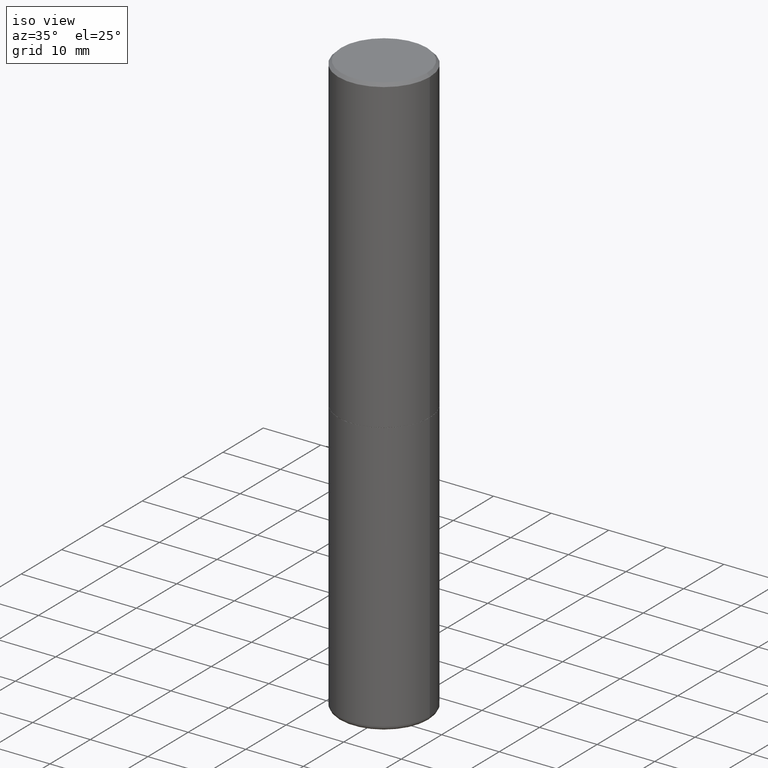
[diagram: clean part render]
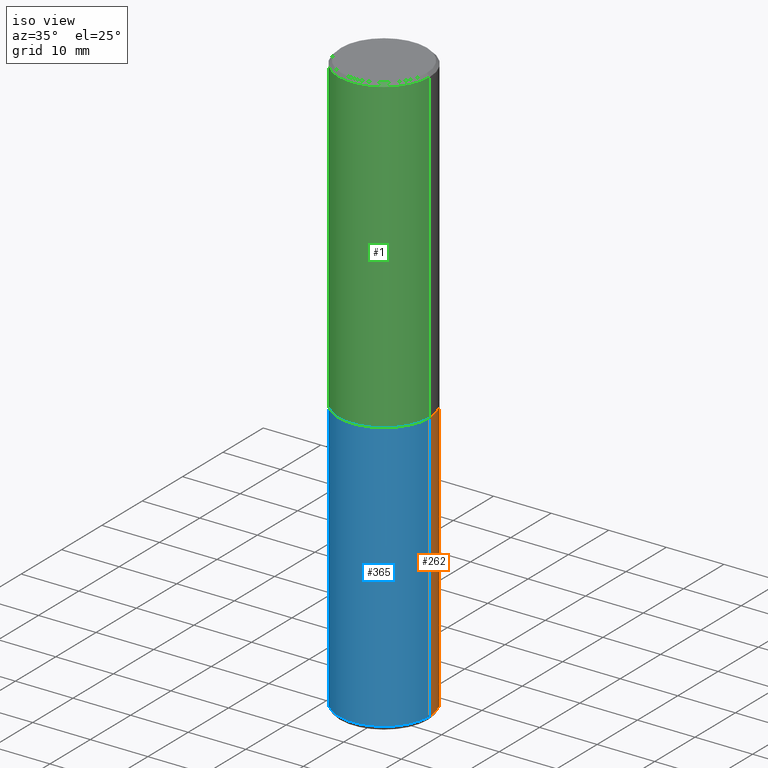
[diagram: same view with three faces highlighted in distinct colors, each labeled with its STEP entity id]
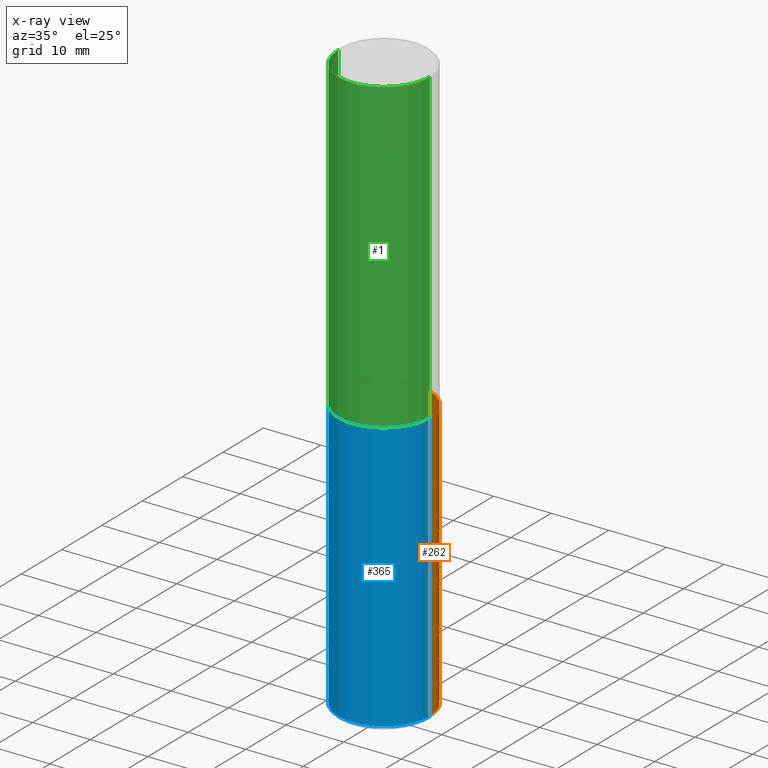
[diagram: x-ray of the same camera — body ghosted, the three highlighted faces saturated]
A machine part, iso view with three faces highlighted in distinct colors.
The next image is the same camera in x-ray (body ghosted, the three faces saturated) — at least one of them is partly hidden behind the body in this view.
Their STEP definitions:

[orange] entity #262 — the highlighted cylindrical surface (partial cylindrical patch) has radius 7.9375 mm, axis along (-0, 0, 1).
#4 = CARTESIAN_POINT ( 'NONE',  ( -0.3125000000000000000, -8.419843330874173211E-15, -2.125000000000000000 ) ) ;
#24 = DIRECTION ( 'NONE',  ( 1.000000000000000000, -6.982962677686264344E-15, 0.000000000000000000 ) ) ;
#36 = CARTESIAN_POINT ( 'NONE',  ( 0.3125000000000000000, -2.182175836776958347E-15, 1.523805242436230075E-29 ) ) ;
#38 = CYLINDRICAL_SURFACE ( 'NONE', #361, 0.3125000000000000000 ) ;
#47 = DIRECTION ( 'NONE',  ( 1.000000000000000000, -6.982962677686266711E-15, 4.876176775795936353E-29 ) ) ;
#54 = CIRCLE ( 'NONE', #281, 0.3125000000000000000 ) ;
#56 = CARTESIAN_POINT ( 'NONE',  ( 9.708511160554992872E-29, -1.386118091520728738E-14, -3.970000000000000195 ) ) ;
#78 = CARTESIAN_POINT ( 'NONE',  ( 5.196621213143415268E-29, -7.419397845041683624E-15, -2.125000000000000000 ) ) ;
#81 = CARTESIAN_POINT ( 'NONE',  ( 0.3124999999999999445, -1.604335675198424415E-14, -3.970000000000000195 ) ) ;
#83 = EDGE_CURVE ( 'NONE', #397, #306, #344, .T. ) ;
#91 = ORIENTED_EDGE ( 'NONE', *, *, #83, .T. ) ;
#99 = CARTESIAN_POINT ( 'NONE',  ( -0.3125000000000000000, 2.220446049250313081E-15, -1.537167215704658232E-29 ) ) ;
#103 = VECTOR ( 'NONE', #293, 39.37007874015748143 ) ;
#106 = LINE ( 'NONE', #99, #103 ) ;
#124 = ORIENTED_EDGE ( 'NONE', *, *, #405, .F. ) ;
#126 = EDGE_LOOP ( 'NONE', ( #91, #215, #124, #287 ) ) ;
#160 = AXIS2_PLACEMENT_3D ( 'NONE', #56, #341, #24 ) ;
#185 = DIRECTION ( 'NONE',  ( -2.445468806185136597E-29, 3.491481338843145583E-15, 1.000000000000000000 ) ) ;
#193 = EDGE_CURVE ( 'NONE', #306, #313, #106, .T. ) ;
#202 = CARTESIAN_POINT ( 'NONE',  ( 0.000000000000000000, 0.000000000000000000, 0.000000000000000000 ) ) ;
#215 = ORIENTED_EDGE ( 'NONE', *, *, #193, .T. ) ;
#237 = VECTOR ( 'NONE', #360, 39.37007874015748143 ) ;
#246 = VERTEX_POINT ( 'NONE', #347 ) ;
#247 = EDGE_CURVE ( 'NONE', #397, #246, #350, .T. ) ;
#262 = ADVANCED_FACE ( 'NONE', ( #318 ), #38, .T. ) ;
#281 = AXIS2_PLACEMENT_3D ( 'NONE', #78, #185, #300 ) ;
#287 = ORIENTED_EDGE ( 'NONE', *, *, #247, .F. ) ;
#291 = DIRECTION ( 'NONE',  ( -2.445468806185136597E-29, 3.491481338843145583E-15, 1.000000000000000000 ) ) ;
#293 = DIRECTION ( 'NONE',  ( -2.445468806185136877E-29, 3.491481338843145188E-15, 1.000000000000000000 ) ) ;
#300 = DIRECTION ( 'NONE',  ( 1.000000000000000000, -6.982962677686269077E-15, 0.000000000000000000 ) ) ;
#306 = VERTEX_POINT ( 'NONE', #387 ) ;
#313 = VERTEX_POINT ( 'NONE', #4 ) ;
#318 = FACE_OUTER_BOUND ( 'NONE', #126, .T. ) ;
#341 = DIRECTION ( 'NONE',  ( -2.445468806185136597E-29, 3.491481338843145583E-15, 1.000000000000000000 ) ) ;
#344 = CIRCLE ( 'NONE', #160, 0.3124999999999999445 ) ;
#347 = CARTESIAN_POINT ( 'NONE',  ( 0.3125000000000000000, -9.601573681818641971E-15, -2.125000000000000000 ) ) ;
#350 = LINE ( 'NONE', #36, #237 ) ;
#360 = DIRECTION ( 'NONE',  ( -2.445468806185136877E-29, 3.491481338843145188E-15, 1.000000000000000000 ) ) ;
#361 = AXIS2_PLACEMENT_3D ( 'NONE', #202, #291, #47 ) ;
#387 = CARTESIAN_POINT ( 'NONE',  ( -0.3124999999999999445, -1.164073486595697430E-14, -3.970000000000000195 ) ) ;
#397 = VERTEX_POINT ( 'NONE', #81 ) ;
#405 = EDGE_CURVE ( 'NONE', #246, #313, #54, .T. ) ;

[blue] entity #365 — the highlighted cylindrical surface (partial cylindrical patch) has radius 7.9375 mm, axis along (-0, 0, 1).
#4 = CARTESIAN_POINT ( 'NONE',  ( -0.3125000000000000000, -8.419843330874173211E-15, -2.125000000000000000 ) ) ;
#17 = DIRECTION ( 'NONE',  ( -2.445468806185136597E-29, 3.491481338843145583E-15, 1.000000000000000000 ) ) ;
#36 = CARTESIAN_POINT ( 'NONE',  ( 0.3125000000000000000, -2.182175836776958347E-15, 1.523805242436230075E-29 ) ) ;
#60 = ORIENTED_EDGE ( 'NONE', *, *, #303, .F. ) ;
#61 = AXIS2_PLACEMENT_3D ( 'NONE', #148, #17, #181 ) ;
#79 = EDGE_CURVE ( 'NONE', #306, #397, #219, .T. ) ;
#81 = CARTESIAN_POINT ( 'NONE',  ( 0.3124999999999999445, -1.604335675198424415E-14, -3.970000000000000195 ) ) ;
#99 = CARTESIAN_POINT ( 'NONE',  ( -0.3125000000000000000, 2.220446049250313081E-15, -1.537167215704658232E-29 ) ) ;
#103 = VECTOR ( 'NONE', #293, 39.37007874015748143 ) ;
#106 = LINE ( 'NONE', #99, #103 ) ;
#128 = ORIENTED_EDGE ( 'NONE', *, *, #247, .T. ) ;
#133 = CARTESIAN_POINT ( 'NONE',  ( 5.196621213143415268E-29, -7.419397845041683624E-15, -2.125000000000000000 ) ) ;
#148 = CARTESIAN_POINT ( 'NONE',  ( 0.000000000000000000, 0.000000000000000000, 0.000000000000000000 ) ) ;
#165 = ORIENTED_EDGE ( 'NONE', *, *, #193, .F. ) ;
#181 = DIRECTION ( 'NONE',  ( 1.000000000000000000, -6.982962677686266711E-15, 4.876176775795936353E-29 ) ) ;
#193 = EDGE_CURVE ( 'NONE', #306, #313, #106, .T. ) ;
#195 = EDGE_LOOP ( 'NONE', ( #165, #340, #128, #60 ) ) ;
#203 = DIRECTION ( 'NONE',  ( -2.445468806185136597E-29, 3.491481338843145583E-15, 1.000000000000000000 ) ) ;
#204 = AXIS2_PLACEMENT_3D ( 'NONE', #286, #220, #374 ) ;
#208 = CIRCLE ( 'NONE', #217, 0.3125000000000000000 ) ;
#209 = CYLINDRICAL_SURFACE ( 'NONE', #61, 0.3125000000000000000 ) ;
#217 = AXIS2_PLACEMENT_3D ( 'NONE', #133, #203, #417 ) ;
#219 = CIRCLE ( 'NONE', #204, 0.3124999999999999445 ) ;
#220 = DIRECTION ( 'NONE',  ( -2.445468806185136597E-29, 3.491481338843145583E-15, 1.000000000000000000 ) ) ;
#237 = VECTOR ( 'NONE', #360, 39.37007874015748143 ) ;
#246 = VERTEX_POINT ( 'NONE', #347 ) ;
#247 = EDGE_CURVE ( 'NONE', #397, #246, #350, .T. ) ;
#286 = CARTESIAN_POINT ( 'NONE',  ( 9.708511160554992872E-29, -1.386118091520728738E-14, -3.970000000000000195 ) ) ;
#293 = DIRECTION ( 'NONE',  ( -2.445468806185136877E-29, 3.491481338843145188E-15, 1.000000000000000000 ) ) ;
#301 = FACE_OUTER_BOUND ( 'NONE', #195, .T. ) ;
#303 = EDGE_CURVE ( 'NONE', #313, #246, #208, .T. ) ;
#306 = VERTEX_POINT ( 'NONE', #387 ) ;
#313 = VERTEX_POINT ( 'NONE', #4 ) ;
#340 = ORIENTED_EDGE ( 'NONE', *, *, #79, .T. ) ;
#347 = CARTESIAN_POINT ( 'NONE',  ( 0.3125000000000000000, -9.601573681818641971E-15, -2.125000000000000000 ) ) ;
#350 = LINE ( 'NONE', #36, #237 ) ;
#360 = DIRECTION ( 'NONE',  ( -2.445468806185136877E-29, 3.491481338843145188E-15, 1.000000000000000000 ) ) ;
#365 = ADVANCED_FACE ( 'NONE', ( #301 ), #209, .T. ) ;
#374 = DIRECTION ( 'NONE',  ( 1.000000000000000000, -6.982962677686264344E-15, 0.000000000000000000 ) ) ;
#387 = CARTESIAN_POINT ( 'NONE',  ( -0.3124999999999999445, -1.164073486595697430E-14, -3.970000000000000195 ) ) ;
#397 = VERTEX_POINT ( 'NONE', #81 ) ;
#417 = DIRECTION ( 'NONE',  ( 1.000000000000000000, -6.982962677686269077E-15, 0.000000000000000000 ) ) ;

[green] entity #1 — the highlighted cylindrical surface (partial cylindrical patch) has radius 7.9375 mm, axis along (-0, 0, 1).
#1 = ADVANCED_FACE ( 'NONE', ( #179 ), #97, .T. ) ;
#12 = DIRECTION ( 'NONE',  ( 1.000000000000000000, -6.982962677686266711E-15, 0.000000000000000000 ) ) ;
#19 = CARTESIAN_POINT ( 'NONE',  ( -0.3125000000000001665, 2.220446049250314264E-15, -1.537167215704658792E-29 ) ) ;
#28 = DIRECTION ( 'NONE',  ( -2.445468806185136597E-29, 3.491481338843145583E-15, 1.000000000000000000 ) ) ;
#33 = DIRECTION ( 'NONE',  ( 1.000000000000000000, -6.982962677686269077E-15, 0.000000000000000000 ) ) ;
#39 = VERTEX_POINT ( 'NONE', #383 ) ;
#73 = EDGE_CURVE ( 'NONE', #380, #39, #353, .T. ) ;
#77 = DIRECTION ( 'NONE',  ( -2.445468806185136877E-29, 3.491481338843145188E-15, 1.000000000000000000 ) ) ;
#97 = CYLINDRICAL_SURFACE ( 'NONE', #239, 0.3125000000000001665 ) ;
#98 = ORIENTED_EDGE ( 'NONE', *, *, #415, .F. ) ;
#104 = VECTOR ( 'NONE', #77, 39.37007874015748143 ) ;
#108 = VERTEX_POINT ( 'NONE', #241 ) ;
#127 = CARTESIAN_POINT ( 'NONE',  ( -0.3124999999999999445, 2.112346210000094654E-15, -0.02000000000000006981 ) ) ;
#132 = VERTEX_POINT ( 'NONE', #127 ) ;
#139 = DIRECTION ( 'NONE',  ( -2.445468806185136597E-29, 3.491481338843145583E-15, 1.000000000000000000 ) ) ;
#162 = ORIENTED_EDGE ( 'NONE', *, *, #216, .T. ) ;
#167 = CIRCLE ( 'NONE', #334, 0.3124999999999999445 ) ;
#179 = FACE_OUTER_BOUND ( 'NONE', #411, .T. ) ;
#180 = AXIS2_PLACEMENT_3D ( 'NONE', #307, #28, #33 ) ;
#189 = VECTOR ( 'NONE', #263, 39.37007874015748143 ) ;
#207 = EDGE_CURVE ( 'NONE', #132, #108, #167, .T. ) ;
#212 = ORIENTED_EDGE ( 'NONE', *, *, #73, .T. ) ;
#216 = EDGE_CURVE ( 'NONE', #39, #108, #255, .T. ) ;
#239 = AXIS2_PLACEMENT_3D ( 'NONE', #349, #256, #285 ) ;
#241 = CARTESIAN_POINT ( 'NONE',  ( 0.3124999999999999445, -2.213735251080466517E-15, -0.02000000000000006981 ) ) ;
#255 = LINE ( 'NONE', #355, #189 ) ;
#256 = DIRECTION ( 'NONE',  ( -2.445468806185136597E-29, 3.491481338843145583E-15, 1.000000000000000000 ) ) ;
#257 = ORIENTED_EDGE ( 'NONE', *, *, #207, .F. ) ;
#258 = CARTESIAN_POINT ( 'NONE',  ( 4.890937612370289799E-31, -6.982962677686315028E-17, -0.02000000000000006981 ) ) ;
#263 = DIRECTION ( 'NONE',  ( -2.445468806185136877E-29, 3.491481338843145188E-15, 1.000000000000000000 ) ) ;
#285 = DIRECTION ( 'NONE',  ( 1.000000000000000000, -6.982962677686266711E-15, 4.876176775795935232E-29 ) ) ;
#307 = CARTESIAN_POINT ( 'NONE',  ( 5.194175744337229665E-29, -7.415906363702840616E-15, -2.123999999999999666 ) ) ;
#334 = AXIS2_PLACEMENT_3D ( 'NONE', #258, #139, #12 ) ;
#337 = CARTESIAN_POINT ( 'NONE',  ( -0.3125000000000002776, -1.522421945989534932E-15, -2.123999999999999666 ) ) ;
#349 = CARTESIAN_POINT ( 'NONE',  ( 0.000000000000000000, 0.000000000000000000, 0.000000000000000000 ) ) ;
#353 = CIRCLE ( 'NONE', #180, 0.3125000000000002776 ) ;
#355 = CARTESIAN_POINT ( 'NONE',  ( 0.3125000000000001665, -2.182175836776959530E-15, 1.523805242436230636E-29 ) ) ;
#363 = LINE ( 'NONE', #19, #104 ) ;
#380 = VERTEX_POINT ( 'NONE', #337 ) ;
#383 = CARTESIAN_POINT ( 'NONE',  ( 0.3125000000000002776, -9.598082200479802119E-15, -2.123999999999999666 ) ) ;
#411 = EDGE_LOOP ( 'NONE', ( #98, #212, #162, #257 ) ) ;
#415 = EDGE_CURVE ( 'NONE', #380, #132, #363, .T. ) ;